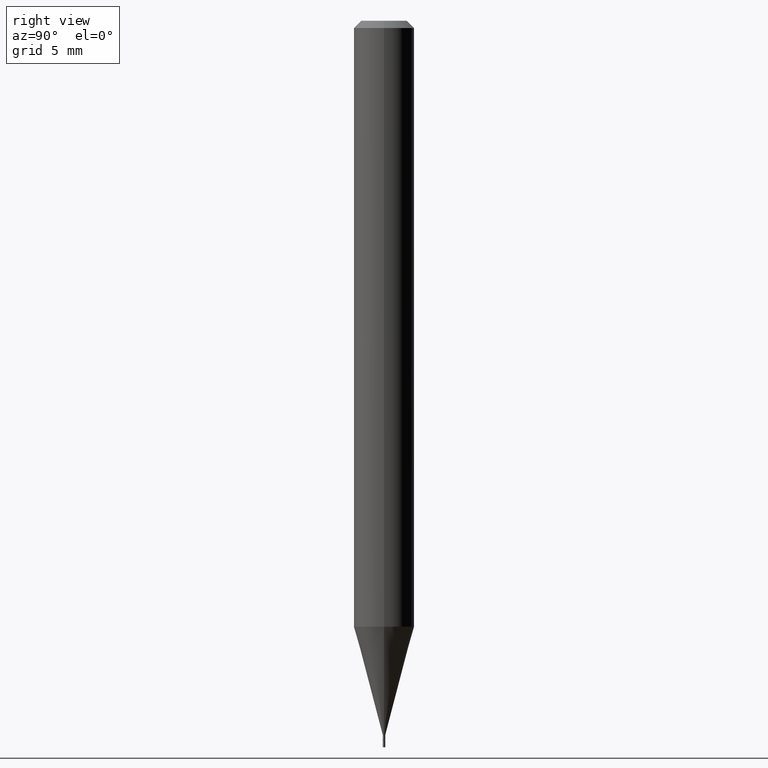
[diagram: clean part render]
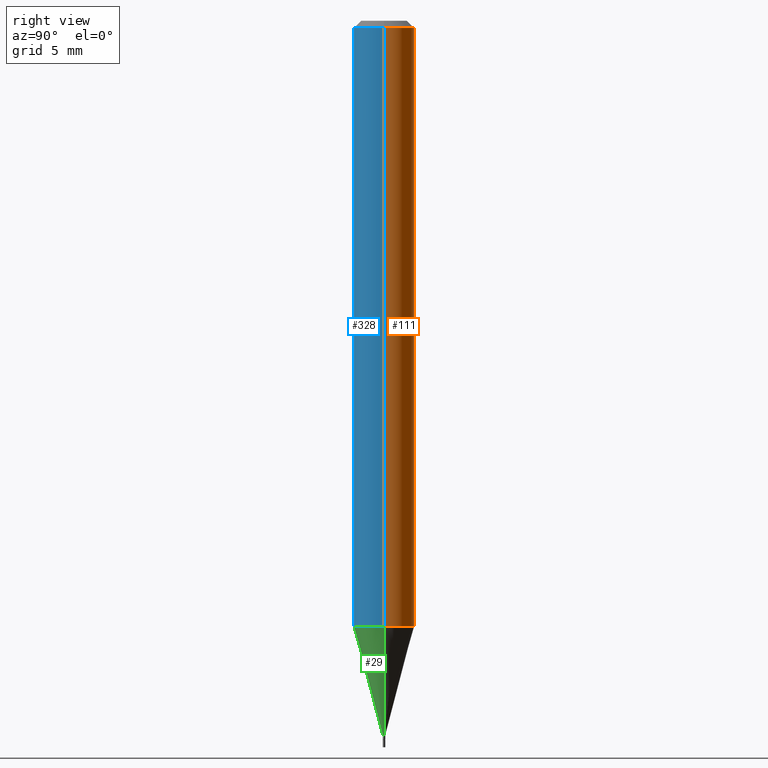
[diagram: same view with three faces highlighted in distinct colors, each labeled with its STEP entity id]
A machine part, right view with three faces highlighted in distinct colors.
Their STEP definitions:

[orange] entity #111 — the highlighted cylindrical surface (edge-blend (fillet) strip) has radius 1.5875 mm, axis along (-0, 0, 1).
#1 = EDGE_CURVE ( 'NONE', #264, #444, #247, .T. ) ;
#18 = EDGE_CURVE ( 'NONE', #444, #342, #66, .T. ) ;
#24 = EDGE_CURVE ( 'NONE', #300, #342, #97, .T. ) ;
#55 = CARTESIAN_POINT ( 'NONE',  ( 3.059469659142613603E-29, -4.368111829779168212E-15, -1.251076951545867955 ) ) ;
#66 = CIRCLE ( 'NONE', #331, 0.06250000000000000000 ) ;
#73 = ORIENTED_EDGE ( 'NONE', *, *, #227, .T. ) ;
#88 = EDGE_LOOP ( 'NONE', ( #73, #208, #154, #187 ) ) ;
#90 = FACE_OUTER_BOUND ( 'NONE', #88, .T. ) ;
#97 = LINE ( 'NONE', #242, #257 ) ;
#107 = DIRECTION ( 'NONE',  ( -2.445468806185136877E-29, 3.491481338843145188E-15, 1.000000000000000000 ) ) ;
#111 = ADVANCED_FACE ( 'NONE', ( #90 ), #161, .T. ) ;
#125 = CARTESIAN_POINT ( 'NONE',  ( 0.06250000000000000000, -4.804546997134559881E-15, -1.251076951545867955 ) ) ;
#154 = ORIENTED_EDGE ( 'NONE', *, *, #18, .F. ) ;
#161 = CYLINDRICAL_SURFACE ( 'NONE', #400, 0.06250000000000000000 ) ;
#180 = CARTESIAN_POINT ( 'NONE',  ( 3.668203209277705088E-31, -5.237222008264718399E-17, -0.01499999999999999944 ) ) ;
#185 = VECTOR ( 'NONE', #107, 39.37007874015748143 ) ;
#187 = ORIENTED_EDGE ( 'NONE', *, *, #1, .F. ) ;
#196 = DIRECTION ( 'NONE',  ( 1.000000000000000000, -6.982962677686270655E-15, 0.000000000000000000 ) ) ;
#198 = CIRCLE ( 'NONE', #395, 0.06250000000000000000 ) ;
#208 = ORIENTED_EDGE ( 'NONE', *, *, #24, .T. ) ;
#227 = EDGE_CURVE ( 'NONE', #264, #300, #198, .T. ) ;
#231 = DIRECTION ( 'NONE',  ( -2.445468806185136597E-29, 3.491481338843145583E-15, 1.000000000000000000 ) ) ;
#242 = CARTESIAN_POINT ( 'NONE',  ( -0.06250000000000000000, 4.440892098500626162E-16, -3.074334431409316114E-30 ) ) ;
#247 = LINE ( 'NONE', #390, #185 ) ;
#257 = VECTOR ( 'NONE', #426, 39.37007874015748143 ) ;
#264 = VERTEX_POINT ( 'NONE', #125 ) ;
#282 = CARTESIAN_POINT ( 'NONE',  ( 0.06250000000000000000, -4.888073874380388472E-16, -0.01499999999999999944 ) ) ;
#288 = DIRECTION ( 'NONE',  ( -2.445468806185136597E-29, 3.491481338843145583E-15, 1.000000000000000000 ) ) ;
#300 = VERTEX_POINT ( 'NONE', #319 ) ;
#319 = CARTESIAN_POINT ( 'NONE',  ( -0.06250000000000000000, -3.924022619929106385E-15, -1.251076951545867955 ) ) ;
#331 = AXIS2_PLACEMENT_3D ( 'NONE', #180, #288, #359 ) ;
#342 = VERTEX_POINT ( 'NONE', #427 ) ;
#359 = DIRECTION ( 'NONE',  ( 1.000000000000000000, -6.982962677686266711E-15, 0.000000000000000000 ) ) ;
#374 = DIRECTION ( 'NONE',  ( 1.000000000000000000, -6.982962677686266711E-15, 4.876176775795935793E-29 ) ) ;
#380 = CARTESIAN_POINT ( 'NONE',  ( 0.000000000000000000, 0.000000000000000000, 0.000000000000000000 ) ) ;
#381 = DIRECTION ( 'NONE',  ( -2.445468806185136597E-29, 3.491481338843145583E-15, 1.000000000000000000 ) ) ;
#390 = CARTESIAN_POINT ( 'NONE',  ( 0.06250000000000000000, -4.364351673553916694E-16, 3.047610484872459871E-30 ) ) ;
#395 = AXIS2_PLACEMENT_3D ( 'NONE', #55, #381, #196 ) ;
#400 = AXIS2_PLACEMENT_3D ( 'NONE', #380, #231, #374 ) ;
#426 = DIRECTION ( 'NONE',  ( -2.445468806185136877E-29, 3.491481338843145188E-15, 1.000000000000000000 ) ) ;
#427 = CARTESIAN_POINT ( 'NONE',  ( -0.06250000000000000000, -1.766152815080845227E-15, -0.01499999999999999944 ) ) ;
#444 = VERTEX_POINT ( 'NONE', #282 ) ;

[blue] entity #328 — the highlighted cylindrical surface (edge-blend (fillet) strip) has radius 1.5875 mm, axis along (-0, 0, 1).
#1 = EDGE_CURVE ( 'NONE', #264, #444, #247, .T. ) ;
#17 = ORIENTED_EDGE ( 'NONE', *, *, #1, .T. ) ;
#24 = EDGE_CURVE ( 'NONE', #300, #342, #97, .T. ) ;
#31 = EDGE_CURVE ( 'NONE', #300, #264, #211, .T. ) ;
#69 = CYLINDRICAL_SURFACE ( 'NONE', #192, 0.06250000000000000000 ) ;
#97 = LINE ( 'NONE', #242, #257 ) ;
#105 = ORIENTED_EDGE ( 'NONE', *, *, #31, .T. ) ;
#107 = DIRECTION ( 'NONE',  ( -2.445468806185136877E-29, 3.491481338843145188E-15, 1.000000000000000000 ) ) ;
#125 = CARTESIAN_POINT ( 'NONE',  ( 0.06250000000000000000, -4.804546997134559881E-15, -1.251076951545867955 ) ) ;
#138 = DIRECTION ( 'NONE',  ( 1.000000000000000000, -6.982962677686270655E-15, 0.000000000000000000 ) ) ;
#185 = VECTOR ( 'NONE', #107, 39.37007874015748143 ) ;
#192 = AXIS2_PLACEMENT_3D ( 'NONE', #462, #460, #205 ) ;
#205 = DIRECTION ( 'NONE',  ( 1.000000000000000000, -6.982962677686266711E-15, 4.876176775795935793E-29 ) ) ;
#209 = EDGE_CURVE ( 'NONE', #342, #444, #375, .T. ) ;
#211 = CIRCLE ( 'NONE', #423, 0.06250000000000000000 ) ;
#220 = ORIENTED_EDGE ( 'NONE', *, *, #209, .F. ) ;
#242 = CARTESIAN_POINT ( 'NONE',  ( -0.06250000000000000000, 4.440892098500626162E-16, -3.074334431409316114E-30 ) ) ;
#244 = CARTESIAN_POINT ( 'NONE',  ( 3.059469659142613603E-29, -4.368111829779168212E-15, -1.251076951545867955 ) ) ;
#247 = LINE ( 'NONE', #390, #185 ) ;
#257 = VECTOR ( 'NONE', #426, 39.37007874015748143 ) ;
#264 = VERTEX_POINT ( 'NONE', #125 ) ;
#282 = CARTESIAN_POINT ( 'NONE',  ( 0.06250000000000000000, -4.888073874380388472E-16, -0.01499999999999999944 ) ) ;
#300 = VERTEX_POINT ( 'NONE', #319 ) ;
#318 = DIRECTION ( 'NONE',  ( -2.445468806185136597E-29, 3.491481338843145583E-15, 1.000000000000000000 ) ) ;
#319 = CARTESIAN_POINT ( 'NONE',  ( -0.06250000000000000000, -3.924022619929106385E-15, -1.251076951545867955 ) ) ;
#328 = ADVANCED_FACE ( 'NONE', ( #361 ), #69, .T. ) ;
#342 = VERTEX_POINT ( 'NONE', #427 ) ;
#361 = FACE_OUTER_BOUND ( 'NONE', #442, .T. ) ;
#375 = CIRCLE ( 'NONE', #445, 0.06250000000000000000 ) ;
#387 = DIRECTION ( 'NONE',  ( -2.445468806185136597E-29, 3.491481338843145583E-15, 1.000000000000000000 ) ) ;
#390 = CARTESIAN_POINT ( 'NONE',  ( 0.06250000000000000000, -4.364351673553916694E-16, 3.047610484872459871E-30 ) ) ;
#416 = DIRECTION ( 'NONE',  ( 1.000000000000000000, -6.982962677686266711E-15, 0.000000000000000000 ) ) ;
#419 = CARTESIAN_POINT ( 'NONE',  ( 3.668203209277705088E-31, -5.237222008264718399E-17, -0.01499999999999999944 ) ) ;
#423 = AXIS2_PLACEMENT_3D ( 'NONE', #244, #387, #138 ) ;
#426 = DIRECTION ( 'NONE',  ( -2.445468806185136877E-29, 3.491481338843145188E-15, 1.000000000000000000 ) ) ;
#427 = CARTESIAN_POINT ( 'NONE',  ( -0.06250000000000000000, -1.766152815080845227E-15, -0.01499999999999999944 ) ) ;
#435 = ORIENTED_EDGE ( 'NONE', *, *, #24, .F. ) ;
#442 = EDGE_LOOP ( 'NONE', ( #435, #105, #17, #220 ) ) ;
#444 = VERTEX_POINT ( 'NONE', #282 ) ;
#445 = AXIS2_PLACEMENT_3D ( 'NONE', #419, #318, #416 ) ;
#460 = DIRECTION ( 'NONE',  ( -2.445468806185136597E-29, 3.491481338843145583E-15, 1.000000000000000000 ) ) ;
#462 = CARTESIAN_POINT ( 'NONE',  ( 0.000000000000000000, 0.000000000000000000, 0.000000000000000000 ) ) ;

[green] entity #29 — the highlighted conical surface has half-angle 15 deg.
#19 = DIRECTION ( 'NONE',  ( 0.2588190451025214611, 1.565188264969620982E-15, 0.9659258262890679791 ) ) ;
#28 = DIRECTION ( 'NONE',  ( -0.2588190451025214611, 5.211531920934550253E-15, 0.9659258262890679791 ) ) ;
#29 = ADVANCED_FACE ( 'NONE', ( #249 ), #431, .T. ) ;
#31 = EDGE_CURVE ( 'NONE', #300, #264, #211, .T. ) ;
#33 = AXIS2_PLACEMENT_3D ( 'NONE', #143, #182, #39 ) ;
#35 = CARTESIAN_POINT ( 'NONE',  ( 3.607066489123076592E-29, -5.149934974793640632E-15, -1.475000000000000311 ) ) ;
#39 = DIRECTION ( 'NONE',  ( 1.000000000000000000, -6.982962677686356641E-15, 0.000000000000000000 ) ) ;
#87 = AXIS2_PLACEMENT_3D ( 'NONE', #35, #171, #459 ) ;
#91 = VERTEX_POINT ( 'NONE', #347 ) ;
#125 = CARTESIAN_POINT ( 'NONE',  ( 0.06250000000000000000, -4.804546997134559881E-15, -1.251076951545867955 ) ) ;
#129 = LINE ( 'NONE', #349, #438 ) ;
#138 = DIRECTION ( 'NONE',  ( 1.000000000000000000, -6.982962677686270655E-15, 0.000000000000000000 ) ) ;
#141 = VECTOR ( 'NONE', #19, 39.37007874015748143 ) ;
#143 = CARTESIAN_POINT ( 'NONE',  ( 3.607066489123076592E-29, -5.149934974793640632E-15, -1.475000000000000311 ) ) ;
#171 = DIRECTION ( 'NONE',  ( -2.445468806185136597E-29, 3.491481338843145583E-15, 1.000000000000000000 ) ) ;
#182 = DIRECTION ( 'NONE',  ( -2.445468806185136597E-29, 3.491481338843145583E-15, 1.000000000000000000 ) ) ;
#201 = LINE ( 'NONE', #344, #141 ) ;
#202 = ORIENTED_EDGE ( 'NONE', *, *, #31, .F. ) ;
#211 = CIRCLE ( 'NONE', #423, 0.06250000000000000000 ) ;
#216 = CARTESIAN_POINT ( 'NONE',  ( 0.002499999999999921989, -5.167392381487856456E-15, -1.475000000000000311 ) ) ;
#221 = EDGE_CURVE ( 'NONE', #91, #300, #129, .T. ) ;
#232 = EDGE_CURVE ( 'NONE', #410, #264, #201, .T. ) ;
#244 = CARTESIAN_POINT ( 'NONE',  ( 3.059469659142613603E-29, -4.368111829779168212E-15, -1.251076951545867955 ) ) ;
#249 = FACE_OUTER_BOUND ( 'NONE', #255, .T. ) ;
#255 = EDGE_LOOP ( 'NONE', ( #326, #304, #310, #202 ) ) ;
#264 = VERTEX_POINT ( 'NONE', #125 ) ;
#275 = CIRCLE ( 'NONE', #33, 0.002499999999999921989 ) ;
#300 = VERTEX_POINT ( 'NONE', #319 ) ;
#304 = ORIENTED_EDGE ( 'NONE', *, *, #366, .T. ) ;
#310 = ORIENTED_EDGE ( 'NONE', *, *, #232, .T. ) ;
#319 = CARTESIAN_POINT ( 'NONE',  ( -0.06250000000000000000, -3.924022619929106385E-15, -1.251076951545867955 ) ) ;
#326 = ORIENTED_EDGE ( 'NONE', *, *, #221, .F. ) ;
#344 = CARTESIAN_POINT ( 'NONE',  ( 0.002499999999999921989, -5.167392381487856456E-15, -1.475000000000000311 ) ) ;
#347 = CARTESIAN_POINT ( 'NONE',  ( -0.002499999999999921989, -4.528097013164372840E-15, -1.475000000000000311 ) ) ;
#349 = CARTESIAN_POINT ( 'NONE',  ( -0.002499999999999921989, -5.132171406399639295E-15, -1.475000000000000311 ) ) ;
#366 = EDGE_CURVE ( 'NONE', #91, #410, #275, .T. ) ;
#387 = DIRECTION ( 'NONE',  ( -2.445468806185136597E-29, 3.491481338843145583E-15, 1.000000000000000000 ) ) ;
#410 = VERTEX_POINT ( 'NONE', #216 ) ;
#423 = AXIS2_PLACEMENT_3D ( 'NONE', #244, #387, #138 ) ;
#431 = CONICAL_SURFACE ( 'NONE', #87, 0.002499999999999921989, 0.2617993877991501850 ) ;
#438 = VECTOR ( 'NONE', #28, 39.37007874015748143 ) ;
#459 = DIRECTION ( 'NONE',  ( 1.000000000000000000, -6.982962677686356641E-15, 0.000000000000000000 ) ) ;